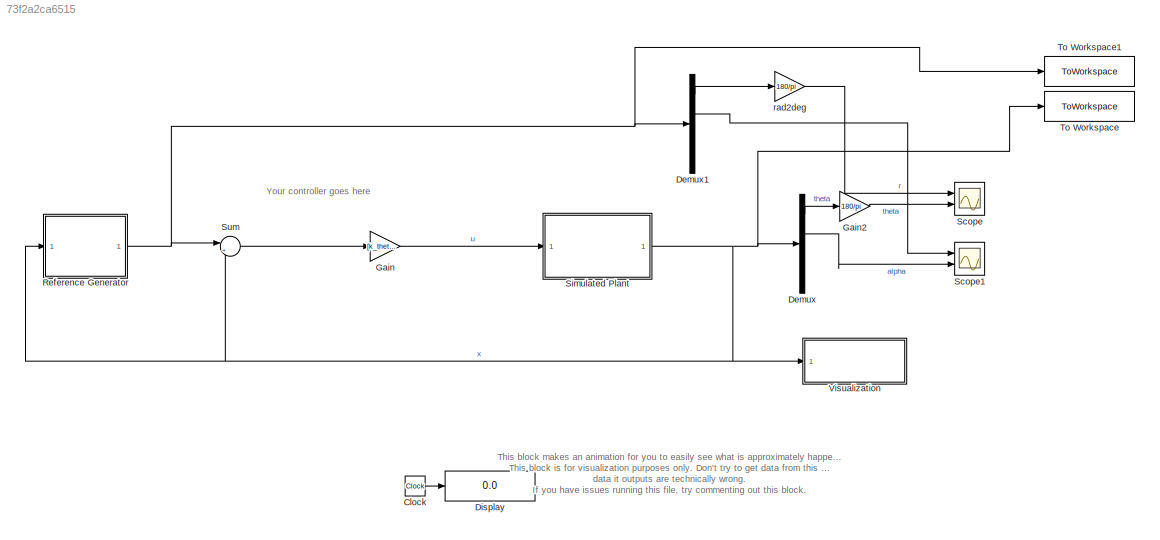
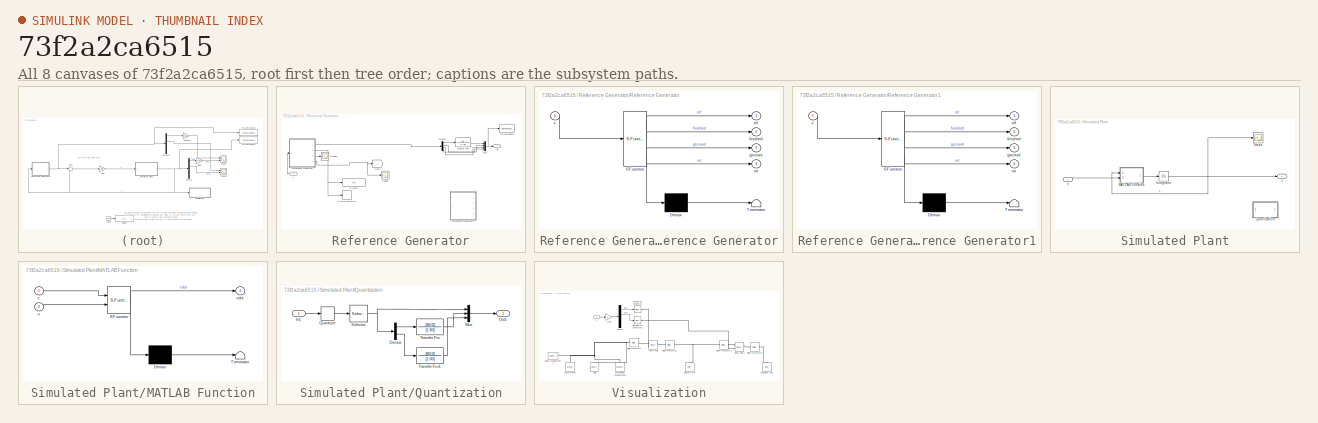
[diagram: thumbnail index - all 8 canvases of the model, root first then tree order]
MODEL slx_73f2a2ca6515
KIND model
CONFIG AbsTol = auto
CONFIG EnableMultiTasking = on
CONFIG FixedStep = 0.002
CONFIG InitFcn = %% Motor\n% Resistance\nRm = 8.4;\n% Current-torque (N-m/A)\nkt = 0.042;\n% Back-emf constant (V-s/rad)\nkm = 0.042;\n%\n%% Rotary Arm\n% Mass (kg)\nMr = 0.095;\n% Total length (m)\nLr = 0.085;\n% Moment of inertia about pivot (kg-m^2)\nJr = Mr*Lr^2/12;\n% Equivalent Viscous Damping Coefficient (N-m-s/rad)\nDr = 0.0015;\n% Dr = 0.001;\n%\n%% Pendulum Link\n% Mass (kg)\nMp = 0.024;\n% Total length (m)\nLp = 0.129;\n% Mome...<+2072ch>
CONFIG MaxStep = auto
CONFIG MinStep = auto
CONFIG RelTol = 1e-3
CONFIG SampleTimeConstraint = Unconstrained
CONFIG SolverName = ode4
CONFIG StartTime = 0.0
CONFIG StopTime = 50
BLOCK [Clock] Clock
BLOCK [Demux] Demux
  Ports = [1, 4]
BLOCK [Demux] Demux1
  Ports = [1, 4]
BLOCK [Display] Display
  Decimation = 1
  Ports = [1]
BLOCK [Gain] Gain
  Gain = [k_theta k_alpha k_theta_dot k_alpha_dot]
  Multiplication = Matrix(K*u)
BLOCK [Gain] Gain2
  Gain = 180/pi
BLOCK [SubSystem] Reference Generator
  Ports = [1, 1]
  RequestExecContextInheritance = off
BLOCK [Demux] Reference Generator/Demux
  Ports = [1, 4]
BLOCK [Display] Reference Generator/Display
  Decimation = 1
  Ports = [1]
BLOCK [Goto] Reference Generator/Goto
  TagVisibility = global
BLOCK [Mux] Reference Generator/Mux
  DisplayOption = bar
  Ports = [4, 1]
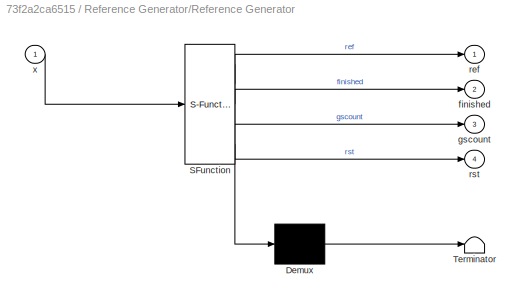
BLOCK [SubSystem] Reference Generator/Reference Generator
  ErrorFcn = Stateflow.Translate.translate
  PermitHierarchicalResolution = ExplicitOnly
  Ports = [1, 4]
  RequestExecContextInheritance = off
  SFBlockType = MATLAB Function
  SystemSampleTime = 0.002
  TreatAsAtomicUnit = on
BLOCK [Demux] Reference Generator/Reference Generator/ Demux 
  Outputs = 1
  Ports = [1, 1]
BLOCK [S-Function] Reference Generator/Reference Generator/ SFunction 
  EnableBusSupport = on
  FunctionName = sf_sfun
  PortCounts = [1 5]
  Ports = [1, 5]
  SFcnIsStateOwnerBlock = off
  SFunctionDeploymentMode = off
  Tag = Stateflow S-Function 2
BLOCK [Terminator] Reference Generator/Reference Generator/ Terminator 
BLOCK [Outport] Reference Generator/Reference Generator/finished
  Port = 2
BLOCK [Outport] Reference Generator/Reference Generator/gscount
  Port = 3
BLOCK [Outport] Reference Generator/Reference Generator/ref
BLOCK [Outport] Reference Generator/Reference Generator/rst
  Port = 4
BLOCK [Inport] Reference Generator/Reference Generator/x
BLOCK [SubSystem] Reference Generator/Reference Generator1
  Commented = on
  ErrorFcn = Stateflow.Translate.translate
  PermitHierarchicalResolution = ExplicitOnly
  Ports = [1, 4]
  RequestExecContextInheritance = off
  SFBlockType = MATLAB Function
  SystemSampleTime = 0.002
  TreatAsAtomicUnit = on
BLOCK [Demux] Reference Generator/Reference Generator1/ Demux 
  Outputs = 1
  Ports = [1, 1]
BLOCK [S-Function] Reference Generator/Reference Generator1/ SFunction 
  EnableBusSupport = on
  FunctionName = sf_sfun
  PortCounts = [1 5]
  Ports = [1, 5]
  SFcnIsStateOwnerBlock = off
  SFunctionDeploymentMode = off
  Tag = Stateflow S-Function 3
BLOCK [Terminator] Reference Generator/Reference Generator1/ Terminator 
BLOCK [Outport] Reference Generator/Reference Generator1/finished
  Port = 2
BLOCK [Outport] Reference Generator/Reference Generator1/gscount
  Port = 3
BLOCK [Outport] Reference Generator/Reference Generator1/ref
BLOCK [Outport] Reference Generator/Reference Generator1/rst
  Port = 4
BLOCK [Inport] Reference Generator/Reference Generator1/x
BLOCK [Scope] Reference Generator/Scope
  Floating = off
  NumInputPorts = 1
  Ports = [1]
  ScopeSpecificationString = Simulink.scopes.TimeScopeBlockCfg('CurrentConfiguration', extmgr.ConfigurationSet(extmgr.Configuration('Core','General UI',true),extmgr.Configuration('Core','Source UI',true),extmgr.Configuration('Sources','WiredSimulink',true,'DataLoggingVariableName','ScopeData3'),extmgr.Configuration('Visuals','Time Domain',true,'SerializedDisplays',{struct('MinYLimReal','-1.00000','MaxYLimReal','1.00000','YLab...<+1410ch>
BLOCK [Scope] Reference Generator/Scope2
  Floating = off
  NumInputPorts = 1
  Ports = [1]
  ScopeSpecificationString = Simulink.scopes.TimeScopeBlockCfg('CurrentConfiguration', extmgr.ConfigurationSet(extmgr.Configuration('Core','General UI',true,'FigureColor',[0.156862745098039 0.156862745098039 0.156862745098039]),extmgr.Configuration('Core','Source UI',true),extmgr.Configuration('Sources','WiredSimulink',true,'DataLoggingVariableName','ScopeData3','DataLoggingSaveFormat','Array','DataLoggingDecimation','1','Dat...<+2818ch>
BLOCK [Stop] Reference Generator/Stop Simulation
BLOCK [ToWorkspace] Reference Generator/To Workspace
  FixptAsFi = on
  MaxDataPoints = inf
  Ports = [1]
  SampleTime = 0.002
  SaveFormat = Structure With Time
  VariableName = r
BLOCK [TransferFcn] Reference Generator/Transfer Fcn
  Denominator = [1 20]
  Numerator = 20
BLOCK [Outport] Reference Generator/ref
BLOCK [Inport] Reference Generator/x
BLOCK [Scope] Scope
  Floating = off
  NumInputPorts = 2
  Ports = [2]
  ScopeSpecificationString = Simulink.scopes.TimeScopeBlockCfg('CurrentConfiguration', extmgr.ConfigurationSet(extmgr.Configuration('Core','General UI',true),extmgr.Configuration('Core','Source UI',true),extmgr.Configuration('Sources','WiredSimulink',true,'DataLoggingVariableName','ScopeData2'),extmgr.Configuration('Visuals','Time Domain',true,'SerializedDisplays',{struct('MinYLimReal','-73.125','MaxYLimReal','58.125','YLabel...<+1467ch>
BLOCK [Scope] Scope1
  Floating = off
  NumInputPorts = 2
  Ports = [2]
  ScopeSpecificationString = Simulink.scopes.TimeScopeBlockCfg('CurrentConfiguration', extmgr.ConfigurationSet(extmgr.Configuration('Core','General UI',true),extmgr.Configuration('Core','Source UI',true),extmgr.Configuration('Sources','WiredSimulink',true,'DataLoggingVariableName','ScopeData1'),extmgr.Configuration('Visuals','Time Domain',true,'SerializedDisplays',{struct('MinYLimReal','-0.05918','MaxYLimReal','0.07427','YLab...<+1401ch>
BLOCK [SubSystem] Simulated Plant
  Ports = [1, 1]
  RequestExecContextInheritance = off
BLOCK [Integrator] Simulated Plant/Integrator
  InitialCondition = [0;0;0;0]
  Ports = [1, 1]
BLOCK [SubSystem] Simulated Plant/MATLAB Function
  ErrorFcn = Stateflow.Translate.translate
  PermitHierarchicalResolution = ExplicitOnly
  Ports = [2, 1]
  RequestExecContextInheritance = off
  SFBlockType = MATLAB Function
  TreatAsAtomicUnit = on
BLOCK [Demux] Simulated Plant/MATLAB Function/ Demux 
  Outputs = 1
  Ports = [1, 1]
BLOCK [S-Function] Simulated Plant/MATLAB Function/ SFunction 
  EnableBusSupport = on
  FunctionName = sf_sfun
  PortCounts = [2 2]
  Ports = [2, 2]
  SFcnIsStateOwnerBlock = off
  SFunctionDeploymentMode = off
  Tag = Stateflow S-Function 4
BLOCK [Terminator] Simulated Plant/MATLAB Function/ Terminator 
BLOCK [Inport] Simulated Plant/MATLAB Function/u
  Port = 2
BLOCK [Inport] Simulated Plant/MATLAB Function/x
BLOCK [Outport] Simulated Plant/MATLAB Function/xdot
BLOCK [SubSystem] Simulated Plant/Quantization
  Commented = on
  Ports = [1, 1]
  RequestExecContextInheritance = off
BLOCK [Demux] Simulated Plant/Quantization/Demux
  Outputs = 2
  Ports = [1, 2]
BLOCK [Inport] Simulated Plant/Quantization/In1
BLOCK [Mux] Simulated Plant/Quantization/Mux
  DisplayOption = bar
  Inputs = 3
  Ports = [3, 1]
BLOCK [Outport] Simulated Plant/Quantization/Out1
BLOCK [Quantizer] Simulated Plant/Quantization/Quantizer
  QuantizationInterval = 2*pi/2048
BLOCK [Selector] Simulated Plant/Quantization/Selector
  IndexOptions = Index vector (dialog)
  Indices = [1 2]
  InputPortWidth = 4
  OutputSizes = 1
  Ports = [1, 1]
BLOCK [TransferFcn] Simulated Plant/Quantization/Transfer Fcn
  Denominator = [1 60]
  Numerator = [60 0]
BLOCK [TransferFcn] Simulated Plant/Quantization/Transfer Fcn1
  Denominator = [1 60]
  Numerator = [60 0]
BLOCK [Scope] Simulated Plant/Scope
  Floating = off
  NumInputPorts = 1
  Ports = [1]
  ScopeSpecificationString = Simulink.scopes.TimeScopeBlockCfg('CurrentConfiguration', extmgr.ConfigurationSet(extmgr.Configuration('Core','General UI',true),extmgr.Configuration('Core','Source UI',true),extmgr.Configuration('Sources','WiredSimulink',true,'DataLoggingVariableName','ScopeData1'),extmgr.Configuration('Visuals','Time Domain',true,'SerializedDisplays',{struct('MinYLimReal','-3.25003','MaxYLimReal','3.67564','YLab...<+1434ch>
BLOCK [Inport] Simulated Plant/u
BLOCK [Outport] Simulated Plant/x
BLOCK [Sum] Sum
  Inputs = |+-
  Ports = [2, 1]
BLOCK [ToWorkspace] To Workspace
  FixptAsFi = on
  MaxDataPoints = inf
  Ports = [1]
  SampleTime = -1
  SaveFormat = Structure With Time
  VariableName = values
BLOCK [ToWorkspace] To Workspace1
  FixptAsFi = on
  MaxDataPoints = inf
  Ports = [1]
  SampleTime = -1
  SaveFormat = Structure With Time
  VariableName = references
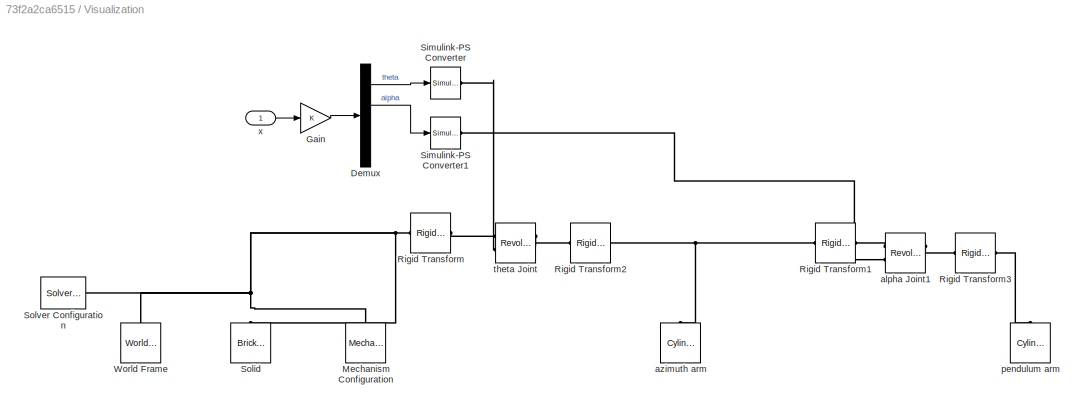
BLOCK [SubSystem] Visualization
  Ports = [1]
  RequestExecContextInheritance = off
BLOCK [Demux] Visualization/Demux
  Ports = [1, 4]
BLOCK [Gain] Visualization/Gain
BLOCK [Reference] Visualization/Mechanism Configuration  REF=sm_lib/Utilities/Mechanism
Configuration
  NameLocation = right
  Ports = [0, 0, 0, 0, 0, 0, 1]
  SourceBlock = sm_lib/Utilities/Mechanism\nConfiguration
  SourceProductBaseCode = MS
  SourceType = Mechanism\nConfiguration
BLOCK [Reference] Visualization/Rigid Transform  REF=sm_lib/Frames and
Transforms/Rigid
Transform
  Ports = [0, 0, 0, 0, 0, 1, 1]
  SourceBlock = sm_lib/Frames and\nTransforms/Rigid\nTransform
  SourceProductBaseCode = MS
  SourceType = Rigid\nTransform
BLOCK [Reference] Visualization/Rigid Transform1  REF=sm_lib/Frames and
Transforms/Rigid
Transform
  Ports = [0, 0, 0, 0, 0, 1, 1]
  SourceBlock = sm_lib/Frames and\nTransforms/Rigid\nTransform
  SourceProductBaseCode = MS
  SourceType = Rigid\nTransform
BLOCK [Reference] Visualization/Rigid Transform2  REF=sm_lib/Frames and
Transforms/Rigid
Transform
  Ports = [0, 0, 0, 0, 0, 1, 1]
  SourceBlock = sm_lib/Frames and\nTransforms/Rigid\nTransform
  SourceProductBaseCode = MS
  SourceType = Rigid\nTransform
BLOCK [Reference] Visualization/Rigid Transform3  REF=sm_lib/Frames and
Transforms/Rigid
Transform
  Ports = [0, 0, 0, 0, 0, 1, 1]
  SourceBlock = sm_lib/Frames and\nTransforms/Rigid\nTransform
  SourceProductBaseCode = MS
  SourceType = Rigid\nTransform
BLOCK [Reference] Visualization/Simulink-PS Converter  REF=nesl_utility/Simulink-PS
Converter
  Ports = [1, 0, 0, 0, 0, 0, 1]
  SourceBlock = nesl_utility/Simulink-PS\nConverter
  SourceProductBaseCode = SS
  SourceType = Simulink-PS\nConverter
BLOCK [Reference] Visualization/Simulink-PS Converter1  REF=nesl_utility/Simulink-PS
Converter
  Ports = [1, 0, 0, 0, 0, 0, 1]
  SourceBlock = nesl_utility/Simulink-PS\nConverter
  SourceProductBaseCode = SS
  SourceType = Simulink-PS\nConverter
BLOCK [Reference] Visualization/Solid  REF=sm_lib/Body Elements/Brick Solid
  NameLocation = right
  Ports = [0, 0, 0, 0, 0, 0, 1]
  SourceBlock = sm_lib/Body Elements/Brick Solid
  SourceProductBaseCode = MS
  SourceType = Brick Solid
BLOCK [Reference] Visualization/Solver Configuration  REF=nesl_utility/Solver
Configuration
  Ports = [0, 0, 0, 0, 0, 0, 1]
  SourceBlock = nesl_utility/Solver\nConfiguration
  SourceProductBaseCode = SS
  SourceType = Solver\nConfiguration
BLOCK [Reference] Visualization/World Frame  REF=sm_lib/Frames and
Transforms/World Frame
  NameLocation = right
  Ports = [0, 0, 0, 0, 0, 0, 1]
  SourceBlock = sm_lib/Frames and\nTransforms/World Frame
  SourceProductBaseCode = MS
  SourceType = World Frame
BLOCK [Reference] Visualization/alpha Joint1  REF=sm_lib/Joints/Revolute Joint
  Ports = [0, 0, 0, 0, 0, 2, 2]
  SourceBlock = sm_lib/Joints/Revolute Joint
  SourceProductBaseCode = MS
  SourceType = Revolute Joint
BLOCK [Reference] Visualization/azimuth arm  REF=sm_lib/Body Elements/Cylindrical Solid
  NameLocation = right
  Ports = [0, 0, 0, 0, 0, 0, 1]
  SourceBlock = sm_lib/Body Elements/Cylindrical Solid
  SourceProductBaseCode = MS
  SourceType = Cylindrical Solid
BLOCK [Reference] Visualization/pendulum arm  REF=sm_lib/Body Elements/Cylindrical Solid
  NameLocation = right
  Ports = [0, 0, 0, 0, 0, 0, 1]
  SourceBlock = sm_lib/Body Elements/Cylindrical Solid
  SourceProductBaseCode = MS
  SourceType = Cylindrical Solid
BLOCK [Reference] Visualization/theta Joint  REF=sm_lib/Joints/Revolute Joint
  Ports = [0, 0, 0, 0, 0, 2, 2]
  SourceBlock = sm_lib/Joints/Revolute Joint
  SourceProductBaseCode = MS
  SourceType = Revolute Joint
BLOCK [Inport] Visualization/x
BLOCK [Gain] rad2deg
  Gain = 180/pi
ANNOTATION (root): This block makes an animation for you to easily see what is approximately happening. This block is for visualization purposes only. Don't try to get data from this block, the data it outputs are technically wrong. If you have issues running this file, try commenting out this block.
ANNOTATION (root): Your controller goes here
LINE Clock:1 -> Display:1
LINE Demux1:1 -> rad2deg:1
LINE Demux1:2 -> Scope1:1
LINE Demux:1 -> Gain2:1
LINE Demux:2 -> Scope1:2
LINE Gain2:1 -> Scope:2
LINE Gain:1 -> Simulated Plant:1
LINE Reference Generator/Demux:1 -> Reference Generator/Transfer Fcn:1
LINE Reference Generator/Demux:2 -> Reference Generator/Mux:2
LINE Reference Generator/Demux:3 -> Reference Generator/Mux:3
LINE Reference Generator/Demux:4 -> Reference Generator/Mux:4
NET Reference Generator/Mux:1 -> Reference Generator/To Workspace:1, Reference Generator/ref:1
LINE Reference Generator/Reference Generator:1 -> Reference Generator/Demux:1
NET Reference Generator/Reference Generator:2 -> Reference Generator/Display:1, Reference Generator/Stop Simulation:1
LINE Reference Generator/Reference Generator:3 -> Reference Generator/Scope2:1
NET Reference Generator/Reference Generator:4 -> Reference Generator/Goto:1, Reference Generator/Scope:1
LINE Reference Generator/Transfer Fcn:1 -> Reference Generator/Mux:1
LINE Reference Generator/x:1 -> Reference Generator/Reference Generator:1
NET Reference Generator:1 -> Demux1:1, Sum:1, To Workspace1:1
NET Simulated Plant/Integrator:1 -> Simulated Plant/MATLAB Function:1, Simulated Plant/Scope:1, Simulated Plant/x:1
LINE Simulated Plant/MATLAB Function:1 -> Simulated Plant/Integrator:1
LINE Simulated Plant/Quantization/Demux:1 -> Simulated Plant/Quantization/Transfer Fcn:1
LINE Simulated Plant/Quantization/Demux:2 -> Simulated Plant/Quantization/Transfer Fcn1:1
LINE Simulated Plant/Quantization/In1:1 -> Simulated Plant/Quantization/Quantizer:1
LINE Simulated Plant/Quantization/Mux:1 -> Simulated Plant/Quantization/Out1:1
LINE Simulated Plant/Quantization/Quantizer:1 -> Simulated Plant/Quantization/Selector:1
NET Simulated Plant/Quantization/Selector:1 -> Simulated Plant/Quantization/Demux:1, Simulated Plant/Quantization/Mux:1
LINE Simulated Plant/Quantization/Transfer Fcn1:1 -> Simulated Plant/Quantization/Mux:3
LINE Simulated Plant/Quantization/Transfer Fcn:1 -> Simulated Plant/Quantization/Mux:2
LINE Simulated Plant/u:1 -> Simulated Plant/MATLAB Function:2
NET Simulated Plant:1 -> Demux:1, Reference Generator:1, Sum:2, To Workspace:1, Visualization:1
LINE Sum:1 -> Gain:1
LINE Visualization/Demux:1 -> Visualization/Simulink-PS Converter:1
LINE Visualization/Demux:2 -> Visualization/Simulink-PS Converter1:1
LINE Visualization/Gain:1 -> Visualization/Demux:1
LINE Visualization/x:1 -> Visualization/Gain:1
LINE rad2deg:1 -> Scope:1
PNET net1: Visualization/Mechanism Configuration:RConn1 -- Visualization/Rigid Transform:LConn1 -- Visualization/Solid:RConn1 -- Visualization/Solver Configuration:RConn1 -- Visualization/World Frame:RConn1
PNET net2: Visualization/Rigid Transform1:LConn1 -- Visualization/Rigid Transform2:RConn1 -- Visualization/azimuth arm:RConn1
PLINE Visualization/Rigid Transform1:RConn1 -- Visualization/alpha Joint1:LConn1
PLINE Visualization/Rigid Transform2:LConn1 -- Visualization/theta Joint:RConn1
PLINE Visualization/Rigid Transform3:LConn1 -- Visualization/alpha Joint1:RConn1
PLINE Visualization/Rigid Transform3:RConn1 -- Visualization/pendulum arm:RConn1
PLINE Visualization/Rigid Transform:RConn1 -- Visualization/theta Joint:LConn1
PLINE Visualization/Simulink-PS Converter1:RConn1 -- Visualization/alpha Joint1:LConn2
PLINE Visualization/Simulink-PS Converter:RConn1 -- Visualization/theta Joint:LConn2
note: NET lines group one-source signal fan-out (src -> all destinations, sorted); 1:1 wires keep LINE; PNET lines group multi-terminal physical nets as a canonical sorted terminal list (undirected conserving connections); 2-terminal nets keep the pairwise PLINE form
CHART Reference Generator/Reference Generator states=1 transitions=1
  STATE_LABEL 'eML_blk_kernel()'
  STATE_LABEL "SCRIPT:\nfunction [ref, finished, gscount,rst] = referenceGenerator(x)\n%#codegen\n%     coder.allowpcode('REFGEN');\n    [ref, finished, gscount, rst] = REFGEN(x);\nend"
CHART Reference Generator/Reference Generator1 states=1 transitions=1
  STATE_LABEL 'eML_blk_kernel()'
  STATE_LABEL "SCRIPT:\nfunction [ref, finished, gscount,rst] = REFGEN(x)\n%#codegen\n%% Crane Reference Generator: For AMME3500 Lab 3 (2016)\n% \n% Generates three `waypoints' for the crane's horizontal linkage. When the\n% state is settled close to the reference at close to zero velocity, the\n% next waypoint is given (the change is a step change). When all the waypoints \n% have been reached, then the task is finishe...<+2318ch>"
CHART Simulated Plant/MATLAB Function states=1 transitions=1
  STATE_LABEL 'eML_blk_kernel()'
  STATE_LABEL 'SCRIPT:\nfunction xdot = fcn(x,u)\n\n    xdot = dyn(x,u);\n\n\nend'
CHART  states=0 transitions=0
CHART  states=0 transitions=0
CHART  states=0 transitions=0
